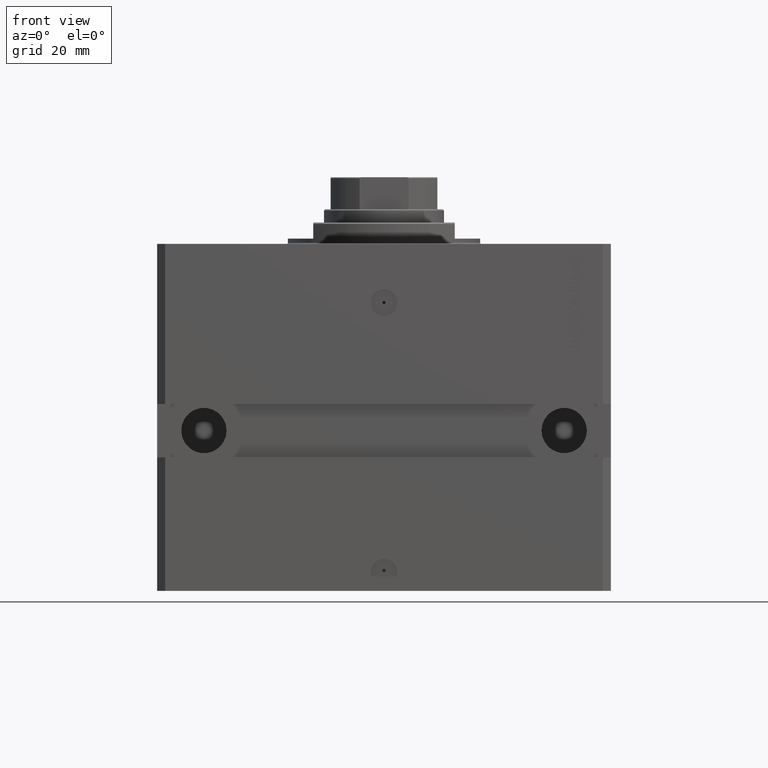
[diagram: clean part render]
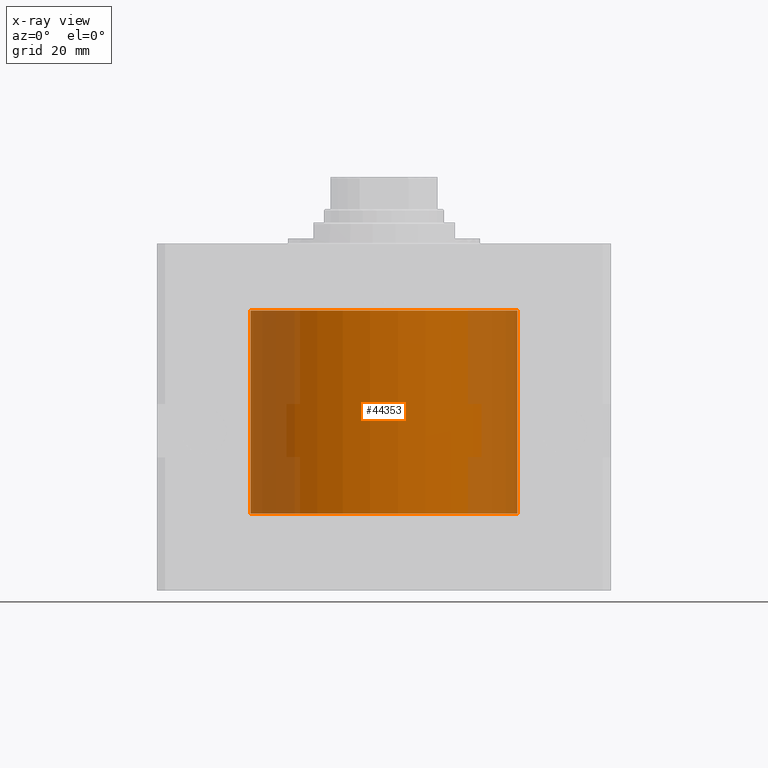
[diagram: x-ray — body ghosted, one internal face saturated and labeled with its STEP entity id]
A machine part, front view, then the same camera in x-ray: the body is ghosted and one INTERNAL B-rep face — a face not visible from any outside direction — is saturated and labeled: STEP entity #44353.
In plain terms, the highlighted cylindrical surface (partial cylindrical patch) has radius 50 mm, axis along (0, 0, 1).
Its self-contained STEP definition (entity closure, byte-faithful):
#848 = CARTESIAN_POINT ( 'NONE',  ( 50.00000000000000000, 0.000000000000000000, -101.0999999999999943 ) ) ;
#2046 = CARTESIAN_POINT ( 'NONE',  ( 50.00000000000000000, 0.000000000000000000, -101.0999999999999943 ) ) ;
#2773 = FACE_OUTER_BOUND ( 'NONE', #18415, .T. ) ;
#2885 = CARTESIAN_POINT ( 'NONE',  ( 0.000000000000000000, 0.000000000000000000, -24.99999999999999289 ) ) ;
#3083 = VECTOR ( 'NONE', #26934, 1000.000000000000000 ) ;
#4786 = CARTESIAN_POINT ( 'NONE',  ( 50.00000000000000000, 0.000000000000000000, -24.99999999999999289 ) ) ;
#7720 = EDGE_CURVE ( 'NONE', #8296, #48099, #9461, .T. ) ;
#8296 = VERTEX_POINT ( 'NONE', #848 ) ;
#9461 = LINE ( 'NONE', #2046, #23262 ) ;
#10304 = ORIENTED_EDGE ( 'NONE', *, *, #7720, .F. ) ;
#10681 = CIRCLE ( 'NONE', #12393, 50.00000000000000000 ) ;
#12393 = AXIS2_PLACEMENT_3D ( 'NONE', #19523, #22986, #19755 ) ;
#13714 = EDGE_CURVE ( 'NONE', #24507, #13719, #23704, .T. ) ;
#13719 = VERTEX_POINT ( 'NONE', #31153 ) ;
#15524 = AXIS2_PLACEMENT_3D ( 'NONE', #48816, #22560, #33729 ) ;
#18415 = EDGE_LOOP ( 'NONE', ( #29275, #19733, #37023, #10304 ) ) ;
#19523 = CARTESIAN_POINT ( 'NONE',  ( 0.000000000000000000, 0.000000000000000000, -101.0999999999999943 ) ) ;
#19733 = ORIENTED_EDGE ( 'NONE', *, *, #13714, .T. ) ;
#19755 = DIRECTION ( 'NONE',  ( 1.000000000000000000, 0.000000000000000000, 0.000000000000000000 ) ) ;
#22072 = CYLINDRICAL_SURFACE ( 'NONE', #15524, 50.00000000000000000 ) ;
#22560 = DIRECTION ( 'NONE',  ( -0.000000000000000000, -0.000000000000000000, 1.000000000000000000 ) ) ;
#22986 = DIRECTION ( 'NONE',  ( 0.000000000000000000, 0.000000000000000000, 1.000000000000000000 ) ) ;
#23262 = VECTOR ( 'NONE', #28510, 1000.000000000000000 ) ;
#23704 = LINE ( 'NONE', #30910, #3083 ) ;
#24507 = VERTEX_POINT ( 'NONE', #43414 ) ;
#26934 = DIRECTION ( 'NONE',  ( -0.000000000000000000, -0.000000000000000000, 1.000000000000000000 ) ) ;
#28510 = DIRECTION ( 'NONE',  ( -0.000000000000000000, -0.000000000000000000, 1.000000000000000000 ) ) ;
#29275 = ORIENTED_EDGE ( 'NONE', *, *, #45618, .F. ) ;
#29356 = DIRECTION ( 'NONE',  ( 1.000000000000000000, 0.000000000000000000, 0.000000000000000000 ) ) ;
#29750 = CIRCLE ( 'NONE', #41512, 50.00000000000000000 ) ;
#30910 = CARTESIAN_POINT ( 'NONE',  ( -50.00000000000000000, 6.123233995736764507E-15, -101.0999999999999943 ) ) ;
#31153 = CARTESIAN_POINT ( 'NONE',  ( -50.00000000000000000, 6.123233995736764507E-15, -24.99999999999999289 ) ) ;
#33729 = DIRECTION ( 'NONE',  ( 1.000000000000000000, 0.000000000000000000, 0.000000000000000000 ) ) ;
#34814 = EDGE_CURVE ( 'NONE', #13719, #48099, #29750, .T. ) ;
#37023 = ORIENTED_EDGE ( 'NONE', *, *, #34814, .T. ) ;
#41512 = AXIS2_PLACEMENT_3D ( 'NONE', #2885, #48660, #29356 ) ;
#43414 = CARTESIAN_POINT ( 'NONE',  ( -50.00000000000000000, 6.123233995736764507E-15, -101.0999999999999943 ) ) ;
#44353 = ADVANCED_FACE ( 'NONE', ( #2773 ), #22072, .F. ) ;
#45618 = EDGE_CURVE ( 'NONE', #24507, #8296, #10681, .T. ) ;
#48099 = VERTEX_POINT ( 'NONE', #4786 ) ;
#48660 = DIRECTION ( 'NONE',  ( 0.000000000000000000, 0.000000000000000000, 1.000000000000000000 ) ) ;
#48816 = CARTESIAN_POINT ( 'NONE',  ( 0.000000000000000000, 0.000000000000000000, -101.0999999999999943 ) ) ;